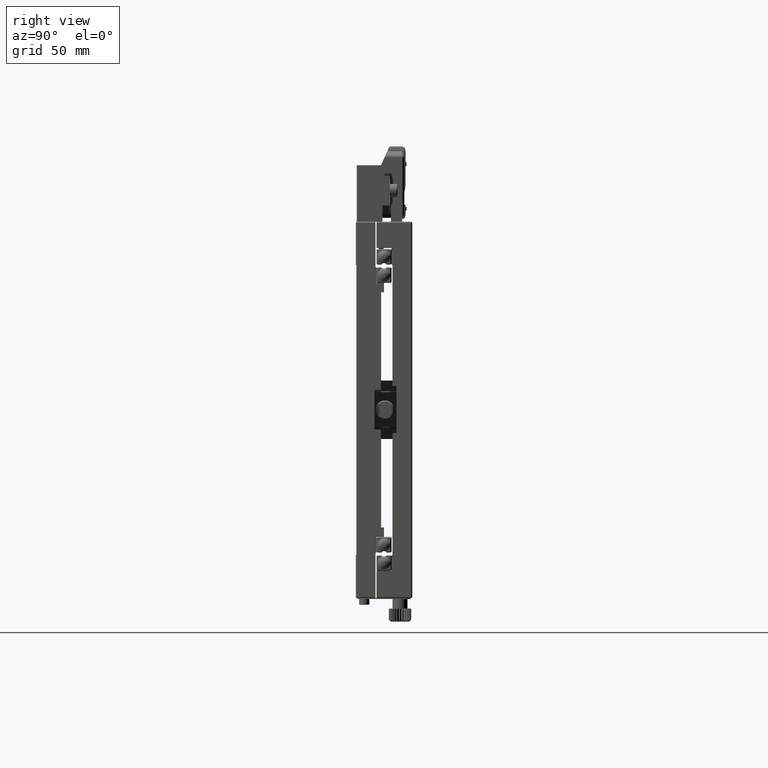
[diagram: clean part render]
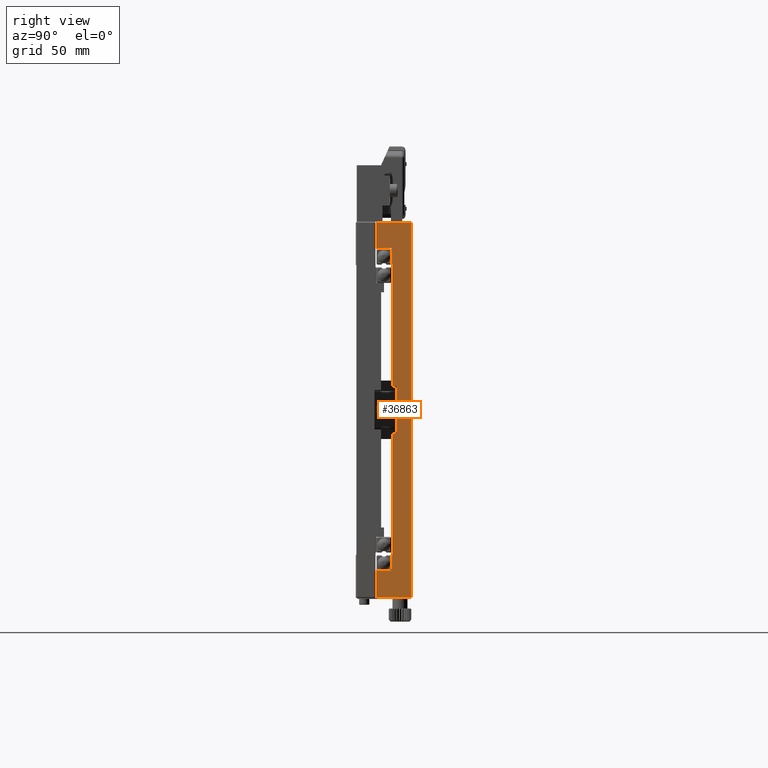
[diagram: same view with one face highlighted and labeled with its STEP entity id]
A machine part, right view. The second image highlights one B-rep face of the part: STEP entity #36863.
In plain terms, the highlighted planar face has unit normal (1, 0, 0).
Its self-contained STEP definition (entity closure, byte-faithful):
#632 = VECTOR ( 'NONE', #55237, 1000.000000000000000 ) ;
#1610 = VERTEX_POINT ( 'NONE', #40947 ) ;
#1634 = VERTEX_POINT ( 'NONE', #46350 ) ;
#2657 = EDGE_CURVE ( 'NONE', #26065, #1610, #24801, .T. ) ;
#2685 = ORIENTED_EDGE ( 'NONE', *, *, #32651, .T. ) ;
#2875 = EDGE_CURVE ( 'NONE', #66394, #49183, #53470, .T. ) ;
#4216 = CARTESIAN_POINT ( 'NONE',  ( 0.000000000000000000, 11.00000000000000000, 0.000000000000000000 ) ) ;
#4265 = LINE ( 'NONE', #39715, #632 ) ;
#4298 = VERTEX_POINT ( 'NONE', #61192 ) ;
#4390 = ORIENTED_EDGE ( 'NONE', *, *, #15008, .T. ) ;
#4454 = VECTOR ( 'NONE', #25878, 1000.000000000000000 ) ;
#5053 = CARTESIAN_POINT ( 'NONE',  ( 0.000000000000000000, 19.00000000000000000, 0.000000000000000000 ) ) ;
#5299 = CARTESIAN_POINT ( 'NONE',  ( 0.000000000000000000, 11.00000000000000000, -12.50000000000000000 ) ) ;
#5571 = CARTESIAN_POINT ( 'NONE',  ( 0.000000000000000000, 11.00000000000000000, 0.000000000000000000 ) ) ;
#5955 = LINE ( 'NONE', #5299, #4454 ) ;
#6857 = ORIENTED_EDGE ( 'NONE', *, *, #46022, .T. ) ;
#6970 = VECTOR ( 'NONE', #16032, 1000.000000000000000 ) ;
#7780 = EDGE_CURVE ( 'NONE', #26816, #57839, #37141, .T. ) ;
#8517 = VECTOR ( 'NONE', #29284, 1000.000000000000000 ) ;
#9192 = DIRECTION ( 'NONE',  ( 0.000000000000000000, -1.000000000000000000, -0.000000000000000000 ) ) ;
#9197 = ORIENTED_EDGE ( 'NONE', *, *, #11986, .T. ) ;
#9664 = ORIENTED_EDGE ( 'NONE', *, *, #29755, .T. ) ;
#10291 = DIRECTION ( 'NONE',  ( 0.000000000000000000, 0.000000000000000000, -1.000000000000000000 ) ) ;
#10297 = CARTESIAN_POINT ( 'NONE',  ( 0.000000000000000000, 19.00000000000000000, -85.50000000000000000 ) ) ;
#10395 = EDGE_CURVE ( 'NONE', #1610, #26816, #41022, .T. ) ;
#11154 = ORIENTED_EDGE ( 'NONE', *, *, #2657, .T. ) ;
#11171 = DIRECTION ( 'NONE',  ( 0.000000000000000000, 0.000000000000000000, -1.000000000000000000 ) ) ;
#11588 = ORIENTED_EDGE ( 'NONE', *, *, #37146, .F. ) ;
#11986 = EDGE_CURVE ( 'NONE', #22694, #25012, #61609, .T. ) ;
#12978 = EDGE_CURVE ( 'NONE', #39647, #27498, #31366, .T. ) ;
#13303 = CARTESIAN_POINT ( 'NONE',  ( 0.000000000000000000, 19.00000000000000000, 86.00000000000000000 ) ) ;
#15008 = EDGE_CURVE ( 'NONE', #16186, #22694, #30691, .T. ) ;
#16032 = DIRECTION ( 'NONE',  ( -0.000000000000000000, 1.000000000000000000, 0.000000000000000000 ) ) ;
#16186 = VERTEX_POINT ( 'NONE', #30704 ) ;
#16348 = VERTEX_POINT ( 'NONE', #54656 ) ;
#17975 = ORIENTED_EDGE ( 'NONE', *, *, #12978, .T. ) ;
#17976 = VERTEX_POINT ( 'NONE', #20406 ) ;
#18016 = VECTOR ( 'NONE', #48262, 1000.000000000000000 ) ;
#18947 = CARTESIAN_POINT ( 'NONE',  ( 0.000000000000000000, 11.00000000000000000, -99.50000000000000000 ) ) ;
#19209 = VECTOR ( 'NONE', #48439, 1000.000000000000000 ) ;
#20406 = CARTESIAN_POINT ( 'NONE',  ( 0.000000000000000000, 19.50000000000000000, 77.20000000000001705 ) ) ;
#22291 = VECTOR ( 'NONE', #11171, 1000.000000000000000 ) ;
#22694 = VERTEX_POINT ( 'NONE', #10297 ) ;
#23061 = VECTOR ( 'NONE', #10291, 1000.000000000000000 ) ;
#23627 = VECTOR ( 'NONE', #30535, 1000.000000000000000 ) ;
#23689 = ORIENTED_EDGE ( 'NONE', *, *, #10395, .T. ) ;
#23723 = CARTESIAN_POINT ( 'NONE',  ( 0.000000000000000000, 19.50000000000000000, -77.20000000000000284 ) ) ;
#24801 = LINE ( 'NONE', #4216, #23061 ) ;
#25012 = VERTEX_POINT ( 'NONE', #29840 ) ;
#25418 = EDGE_LOOP ( 'NONE', ( #4390, #9197, #42625, #39614, #17975, #2685, #11154, #23689, #33746, #47625, #6857, #49689, #9664, #31143, #60876, #11588 ) ) ;
#25878 = DIRECTION ( 'NONE',  ( 0.000000000000000000, -1.000000000000000000, -0.000000000000000000 ) ) ;
#26065 = VERTEX_POINT ( 'NONE', #34368 ) ;
#26586 = EDGE_CURVE ( 'NONE', #25012, #16348, #30873, .T. ) ;
#26816 = VERTEX_POINT ( 'NONE', #13303 ) ;
#27223 = DIRECTION ( 'NONE',  ( 0.000000000000000000, 0.000000000000000000, -1.000000000000000000 ) ) ;
#27498 = VERTEX_POINT ( 'NONE', #51455 ) ;
#27737 = VERTEX_POINT ( 'NONE', #23723 ) ;
#28114 = LINE ( 'NONE', #58188, #28860 ) ;
#28860 = VECTOR ( 'NONE', #53782, 1000.000000000000000 ) ;
#29284 = DIRECTION ( 'NONE',  ( 0.000000000000000000, -1.000000000000000000, -0.000000000000000000 ) ) ;
#29755 = EDGE_CURVE ( 'NONE', #49183, #4298, #61272, .T. ) ;
#29840 = CARTESIAN_POINT ( 'NONE',  ( 0.000000000000000000, 11.00000000000000000, -85.50000000000000000 ) ) ;
#30151 = VECTOR ( 'NONE', #27223, 1000.000000000000000 ) ;
#30524 = DIRECTION ( 'NONE',  ( 0.000000000000000000, 0.000000000000000000, -1.000000000000000000 ) ) ;
#30535 = DIRECTION ( 'NONE',  ( -0.000000000000000000, 1.000000000000000000, 0.000000000000000000 ) ) ;
#30691 = LINE ( 'NONE', #5053, #57841 ) ;
#30704 = CARTESIAN_POINT ( 'NONE',  ( 0.000000000000000000, 19.00000000000000000, -77.20000000000000284 ) ) ;
#30864 = CARTESIAN_POINT ( 'NONE',  ( 0.000000000000000000, 11.00000000000000000, -85.50000000000000000 ) ) ;
#30873 = LINE ( 'NONE', #5571, #60275 ) ;
#31143 = ORIENTED_EDGE ( 'NONE', *, *, #53704, .T. ) ;
#31366 = LINE ( 'NONE', #42173, #57132 ) ;
#32563 = VECTOR ( 'NONE', #30524, 1000.000000000000000 ) ;
#32651 = EDGE_CURVE ( 'NONE', #27498, #26065, #64600, .T. ) ;
#33453 = DIRECTION ( 'NONE',  ( 0.000000000000000000, 0.000000000000000000, -1.000000000000000000 ) ) ;
#33746 = ORIENTED_EDGE ( 'NONE', *, *, #7780, .T. ) ;
#34368 = CARTESIAN_POINT ( 'NONE',  ( 0.000000000000000000, 11.00000000000000000, 99.50000000000000000 ) ) ;
#34449 = DIRECTION ( 'NONE',  ( 1.000000000000000000, 0.000000000000000000, 0.000000000000000000 ) ) ;
#34806 = VECTOR ( 'NONE', #9192, 1000.000000000000000 ) ;
#35398 = CARTESIAN_POINT ( 'NONE',  ( 0.000000000000000000, 19.50000000000000000, 12.49999999999999822 ) ) ;
#35431 = DIRECTION ( 'NONE',  ( 0.000000000000000000, 0.000000000000000000, -1.000000000000000000 ) ) ;
#36863 = ADVANCED_FACE ( 'NONE', ( #53731 ), #38866, .T. ) ;
#36926 = CARTESIAN_POINT ( 'NONE',  ( 0.000000000000000000, 11.00000000000000000, 12.50000000000000000 ) ) ;
#37141 = LINE ( 'NONE', #42541, #22291 ) ;
#37146 = EDGE_CURVE ( 'NONE', #16186, #27737, #59396, .T. ) ;
#37904 = EDGE_CURVE ( 'NONE', #16348, #39647, #65204, .T. ) ;
#38866 = PLANE ( 'NONE',  #41655 ) ;
#39000 = CARTESIAN_POINT ( 'NONE',  ( 0.000000000000000000, 19.00000000000000000, 77.20000000000000284 ) ) ;
#39614 = ORIENTED_EDGE ( 'NONE', *, *, #37904, .T. ) ;
#39647 = VERTEX_POINT ( 'NONE', #55630 ) ;
#39715 = CARTESIAN_POINT ( 'NONE',  ( 0.000000000000000000, 19.50000000000000000, 0.000000000000000000 ) ) ;
#40947 = CARTESIAN_POINT ( 'NONE',  ( 0.000000000000000000, 11.00000000000000000, 86.00000000000000000 ) ) ;
#41022 = LINE ( 'NONE', #57229, #23627 ) ;
#41655 = AXIS2_PLACEMENT_3D ( 'NONE', #43579, #34449, #33453 ) ;
#42173 = CARTESIAN_POINT ( 'NONE',  ( 0.000000000000000000, 29.50000000000000000, 0.000000000000000000 ) ) ;
#42541 = CARTESIAN_POINT ( 'NONE',  ( 0.000000000000000000, 19.00000000000000000, 0.000000000000000000 ) ) ;
#42625 = ORIENTED_EDGE ( 'NONE', *, *, #26586, .T. ) ;
#43579 = CARTESIAN_POINT ( 'NONE',  ( 0.000000000000000000, 11.00000000000000000, 0.000000000000000000 ) ) ;
#46022 = EDGE_CURVE ( 'NONE', #17976, #66394, #47502, .T. ) ;
#46350 = CARTESIAN_POINT ( 'NONE',  ( 0.000000000000000000, 19.50000000000000000, -12.50000000000000000 ) ) ;
#47502 = LINE ( 'NONE', #62704, #30151 ) ;
#47625 = ORIENTED_EDGE ( 'NONE', *, *, #62095, .F. ) ;
#48262 = DIRECTION ( 'NONE',  ( -0.000000000000000000, 1.000000000000000000, 0.000000000000000000 ) ) ;
#48439 = DIRECTION ( 'NONE',  ( -0.000000000000000000, 1.000000000000000000, 0.000000000000000000 ) ) ;
#48916 = CARTESIAN_POINT ( 'NONE',  ( 0.000000000000000000, 19.50000000000000000, -77.20000000000000284 ) ) ;
#49183 = VERTEX_POINT ( 'NONE', #50163 ) ;
#49689 = ORIENTED_EDGE ( 'NONE', *, *, #2875, .T. ) ;
#50163 = CARTESIAN_POINT ( 'NONE',  ( 0.000000000000000000, 21.50000000000000000, 12.49999999999999289 ) ) ;
#51455 = CARTESIAN_POINT ( 'NONE',  ( 2.910998709042226773E-17, 29.50000000000000355, 99.50000000000000000 ) ) ;
#52304 = DIRECTION ( 'NONE',  ( 0.000000000000000000, 0.000000000000000000, 1.000000000000000000 ) ) ;
#52824 = DIRECTION ( 'NONE',  ( 0.000000000000000000, 0.000000000000000000, -1.000000000000000000 ) ) ;
#53470 = LINE ( 'NONE', #36926, #6970 ) ;
#53704 = EDGE_CURVE ( 'NONE', #4298, #1634, #5955, .T. ) ;
#53731 = FACE_OUTER_BOUND ( 'NONE', #25418, .T. ) ;
#53782 = DIRECTION ( 'NONE',  ( -0.000000000000000000, -1.000000000000000000, -5.551115123125780178E-14 ) ) ;
#54656 = CARTESIAN_POINT ( 'NONE',  ( 5.421010862427522170E-17, 11.00000000000000000, -99.50000000000000000 ) ) ;
#55237 = DIRECTION ( 'NONE',  ( 0.000000000000000000, 0.000000000000000000, -1.000000000000000000 ) ) ;
#55630 = CARTESIAN_POINT ( 'NONE',  ( -2.032879073410320814E-17, 29.50000000000000355, -99.50000000000001421 ) ) ;
#56201 = CARTESIAN_POINT ( 'NONE',  ( 0.000000000000000000, 21.50000000000000000, 0.000000000000000000 ) ) ;
#57132 = VECTOR ( 'NONE', #52304, 1000.000000000000000 ) ;
#57229 = CARTESIAN_POINT ( 'NONE',  ( 0.000000000000000000, 11.00000000000000000, 86.00000000000000000 ) ) ;
#57839 = VERTEX_POINT ( 'NONE', #39000 ) ;
#57841 = VECTOR ( 'NONE', #35431, 1000.000000000000000 ) ;
#58188 = CARTESIAN_POINT ( 'NONE',  ( 0.000000000000000000, 19.00000000000000000, 77.20000000000000284 ) ) ;
#59396 = LINE ( 'NONE', #48916, #18016 ) ;
#59521 = CARTESIAN_POINT ( 'NONE',  ( 0.000000000000000000, 11.00000000000000000, 99.50000000000000000 ) ) ;
#60275 = VECTOR ( 'NONE', #52824, 1000.000000000000000 ) ;
#60372 = EDGE_CURVE ( 'NONE', #1634, #27737, #4265, .T. ) ;
#60876 = ORIENTED_EDGE ( 'NONE', *, *, #60372, .T. ) ;
#61192 = CARTESIAN_POINT ( 'NONE',  ( 0.000000000000000000, 21.50000000000000000, -12.50000000000000000 ) ) ;
#61272 = LINE ( 'NONE', #56201, #32563 ) ;
#61609 = LINE ( 'NONE', #30864, #8517 ) ;
#62095 = EDGE_CURVE ( 'NONE', #17976, #57839, #28114, .T. ) ;
#62704 = CARTESIAN_POINT ( 'NONE',  ( 0.000000000000000000, 19.50000000000000000, 0.000000000000000000 ) ) ;
#64600 = LINE ( 'NONE', #59521, #34806 ) ;
#65204 = LINE ( 'NONE', #18947, #19209 ) ;
#66394 = VERTEX_POINT ( 'NONE', #35398 ) ;